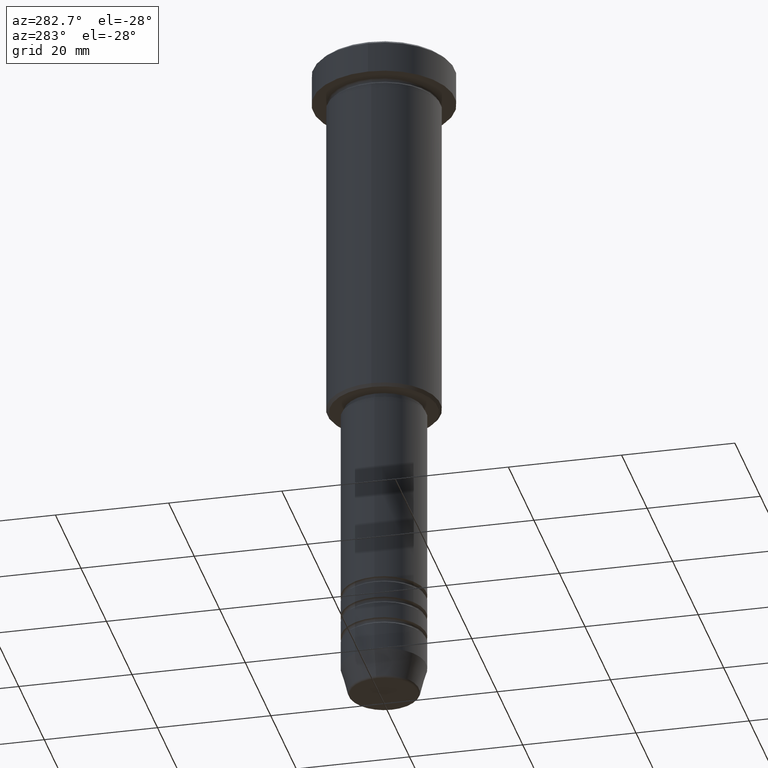
[diagram: clean part render]
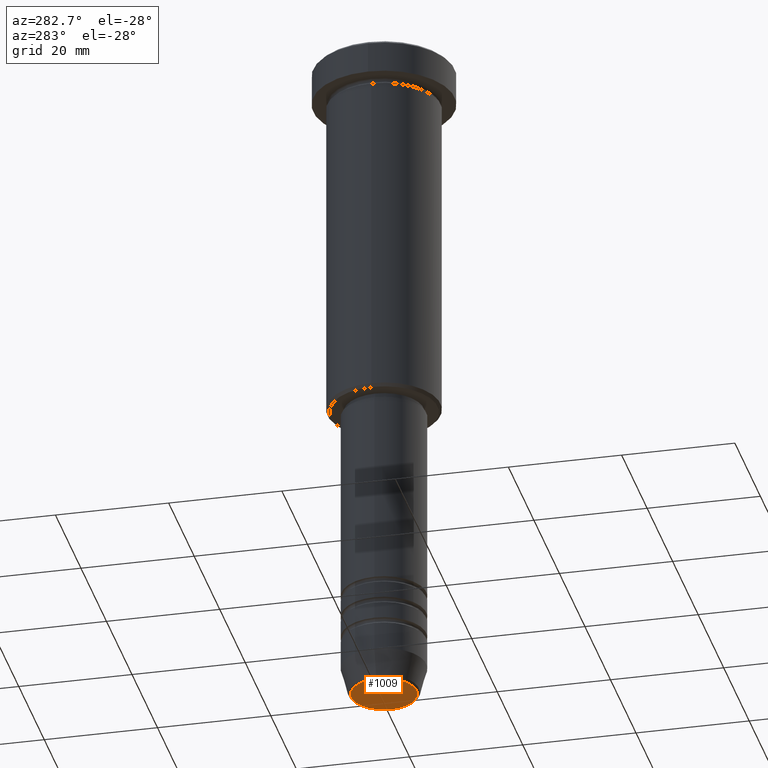
[diagram: same view with one face highlighted and labeled with its STEP entity id]
A machine part, auxiliary view. The second image highlights one B-rep face of the part: STEP entity #1009.
In plain terms, the highlighted planar face has unit normal (0, -0, 1).
Its self-contained STEP definition (entity closure, byte-faithful):
#6 = DIRECTION ( 'NONE',  ( 0.000000000000000000, 0.000000000000000000, -1.000000000000000000 ) ) ;
#101 = EDGE_LOOP ( 'NONE', ( #1155, #803 ) ) ;
#105 = AXIS2_PLACEMENT_3D ( 'NONE', #1065, #597, #965 ) ;
#206 = CARTESIAN_POINT ( 'NONE',  ( -5.776590543854905668, 7.370012612361445601E-16, -121.0000000000000000 ) ) ;
#227 = DIRECTION ( 'NONE',  ( 0.000000000000000000, 0.000000000000000000, -1.000000000000000000 ) ) ;
#434 = DIRECTION ( 'NONE',  ( 1.000000000000000000, 0.000000000000000000, 0.000000000000000000 ) ) ;
#496 = AXIS2_PLACEMENT_3D ( 'NONE', #827, #6, #434 ) ;
#597 = DIRECTION ( 'NONE',  ( 0.000000000000000000, -0.000000000000000000, 1.000000000000000000 ) ) ;
#644 = CARTESIAN_POINT ( 'NONE',  ( 5.776590543854905668, 0.000000000000000000, -121.0000000000000000 ) ) ;
#652 = CIRCLE ( 'NONE', #922, 5.776590543854905668 ) ;
#686 = DIRECTION ( 'NONE',  ( 1.000000000000000000, 0.000000000000000000, 0.000000000000000000 ) ) ;
#803 = ORIENTED_EDGE ( 'NONE', *, *, #1177, .T. ) ;
#805 = VERTEX_POINT ( 'NONE', #206 ) ;
#827 = CARTESIAN_POINT ( 'NONE',  ( 0.000000000000000000, 0.000000000000000000, -121.0000000000000000 ) ) ;
#879 = EDGE_CURVE ( 'NONE', #1037, #805, #652, .T. ) ;
#922 = AXIS2_PLACEMENT_3D ( 'NONE', #962, #227, #686 ) ;
#955 = CIRCLE ( 'NONE', #496, 5.776590543854905668 ) ;
#962 = CARTESIAN_POINT ( 'NONE',  ( 0.000000000000000000, 0.000000000000000000, -121.0000000000000000 ) ) ;
#965 = DIRECTION ( 'NONE',  ( 1.000000000000000000, 0.000000000000000000, 0.000000000000000000 ) ) ;
#1009 = ADVANCED_FACE ( 'NONE', ( #1049 ), #1145, .F. ) ;
#1037 = VERTEX_POINT ( 'NONE', #644 ) ;
#1049 = FACE_OUTER_BOUND ( 'NONE', #101, .T. ) ;
#1065 = CARTESIAN_POINT ( 'NONE',  ( 0.000000000000000000, 0.000000000000000000, -121.0000000000000000 ) ) ;
#1145 = PLANE ( 'NONE',  #105 ) ;
#1155 = ORIENTED_EDGE ( 'NONE', *, *, #879, .T. ) ;
#1177 = EDGE_CURVE ( 'NONE', #805, #1037, #955, .T. ) ;